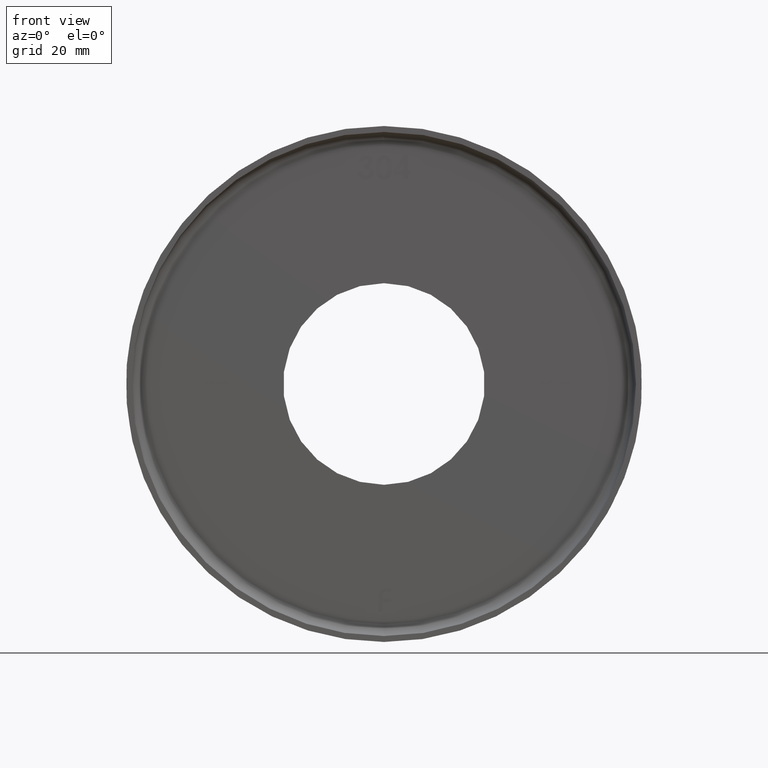
[diagram: clean part render]
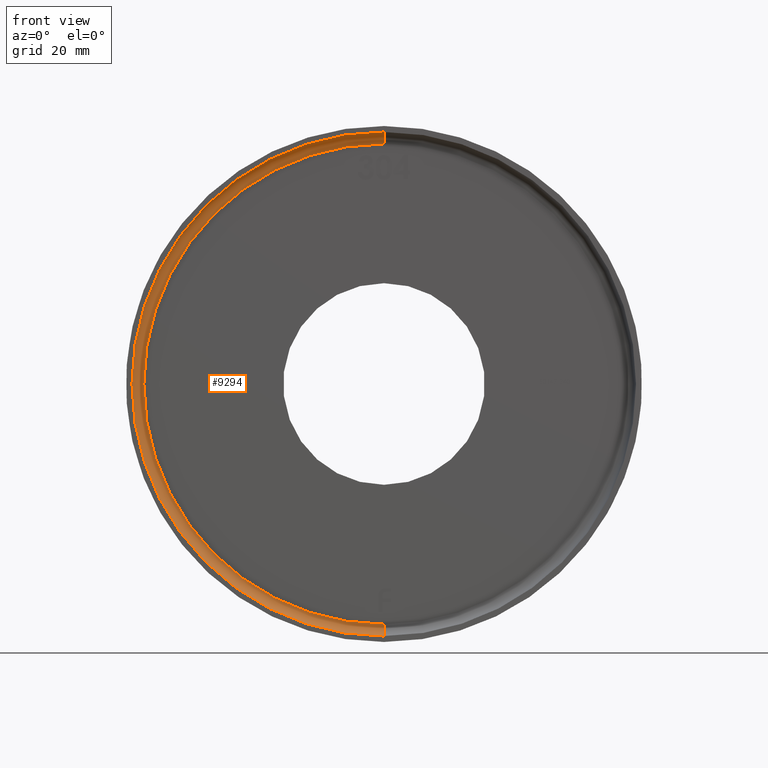
[diagram: same view with one face highlighted and labeled with its STEP entity id]
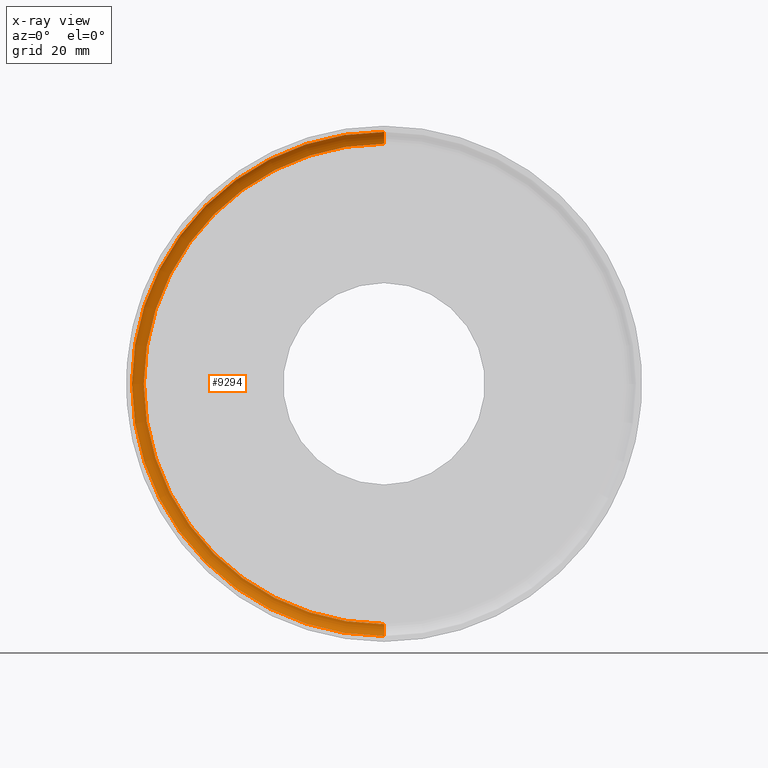
[diagram: x-ray of the same camera — body ghosted, the highlighted face saturated]
A machine part, front view. The second image highlights one B-rep face of the part: STEP entity #9294.
The next image is the same camera in x-ray: the body ghosted, the highlighted face saturated — about 0% of this face is hidden behind the body in this view.
In plain terms, the highlighted toroidal blend (fillet) surface has major radius 40.5 mm and minor (blend) radius 2 mm.
Its self-contained STEP definition (entity closure, byte-faithful):
#579 = EDGE_LOOP ( 'NONE', ( #11817, #10725, #9265, #2757 ) ) ;
#1795 = CIRCLE ( 'NONE', #9711, 2.000000000000001776 ) ;
#2186 = DIRECTION ( 'NONE',  ( -1.224646799147353454E-16, 0.000000000000000000, -1.000000000000000000 ) ) ;
#2328 = CARTESIAN_POINT ( 'NONE',  ( 4.959819536546779811E-15, 6.999999999999999112, 40.49999999999999289 ) ) ;
#2488 = DIRECTION ( 'NONE',  ( -0.000000000000000000, -1.000000000000000000, -0.000000000000000000 ) ) ;
#2757 = ORIENTED_EDGE ( 'NONE', *, *, #3624, .F. ) ;
#2804 = AXIS2_PLACEMENT_3D ( 'NONE', #6642, #14578, #12207 ) ;
#3272 = DIRECTION ( 'NONE',  ( -0.000000000000000000, -1.000000000000000000, -0.000000000000000000 ) ) ;
#3418 = CARTESIAN_POINT ( 'NONE',  ( 0.000000000000000000, 9.000000000000001776, 0.000000000000000000 ) ) ;
#3624 = EDGE_CURVE ( 'NONE', #10441, #9322, #4954, .T. ) ;
#4954 = CIRCLE ( 'NONE', #11255, 2.000000000000001776 ) ;
#5573 = CARTESIAN_POINT ( 'NONE',  ( 0.000000000000000000, 6.999999999999999112, -42.49999999999999289 ) ) ;
#6209 = VERTEX_POINT ( 'NONE', #11856 ) ;
#6519 = CARTESIAN_POINT ( 'NONE',  ( 0.000000000000000000, 6.999999999999999112, -40.49999999999999289 ) ) ;
#6642 = CARTESIAN_POINT ( 'NONE',  ( 0.000000000000000000, 6.999999999999999112, 0.000000000000000000 ) ) ;
#6999 = AXIS2_PLACEMENT_3D ( 'NONE', #3418, #2488, #12723 ) ;
#7362 = CIRCLE ( 'NONE', #10437, 42.49999999999999289 ) ;
#7814 = DIRECTION ( 'NONE',  ( 0.000000000000000000, 0.000000000000000000, -1.000000000000000000 ) ) ;
#8002 = DIRECTION ( 'NONE',  ( 1.000000000000000000, 0.000000000000000000, -1.224646799147353207E-16 ) ) ;
#8229 = CARTESIAN_POINT ( 'NONE',  ( 0.000000000000000000, 9.000000000000001776, -40.49999999999999289 ) ) ;
#8761 = EDGE_CURVE ( 'NONE', #10635, #10441, #12691, .T. ) ;
#9265 = ORIENTED_EDGE ( 'NONE', *, *, #9874, .T. ) ;
#9294 = ADVANCED_FACE ( 'NONE', ( #10388 ), #11989, .F. ) ;
#9322 = VERTEX_POINT ( 'NONE', #5573 ) ;
#9711 = AXIS2_PLACEMENT_3D ( 'NONE', #2328, #8002, #2186 ) ;
#9874 = EDGE_CURVE ( 'NONE', #6209, #9322, #7362, .T. ) ;
#9909 = DIRECTION ( 'NONE',  ( -1.000000000000000000, 0.000000000000000000, 0.000000000000000000 ) ) ;
#10388 = FACE_OUTER_BOUND ( 'NONE', #579, .T. ) ;
#10437 = AXIS2_PLACEMENT_3D ( 'NONE', #14517, #3272, #7814 ) ;
#10441 = VERTEX_POINT ( 'NONE', #8229 ) ;
#10635 = VERTEX_POINT ( 'NONE', #13841 ) ;
#10725 = ORIENTED_EDGE ( 'NONE', *, *, #13166, .T. ) ;
#11044 = DIRECTION ( 'NONE',  ( 0.000000000000000000, 0.000000000000000000, 1.000000000000000000 ) ) ;
#11255 = AXIS2_PLACEMENT_3D ( 'NONE', #6519, #9909, #11044 ) ;
#11817 = ORIENTED_EDGE ( 'NONE', *, *, #8761, .F. ) ;
#11856 = CARTESIAN_POINT ( 'NONE',  ( 5.204748896376250107E-15, 6.999999999999999112, 42.49999999999999289 ) ) ;
#11989 = TOROIDAL_SURFACE ( 'NONE', #2804, 40.49999999999999289, 2.000000000000001776 ) ;
#12207 = DIRECTION ( 'NONE',  ( 0.000000000000000000, 0.000000000000000000, -1.000000000000000000 ) ) ;
#12691 = CIRCLE ( 'NONE', #6999, 40.49999999999999289 ) ;
#12723 = DIRECTION ( 'NONE',  ( 0.000000000000000000, 0.000000000000000000, -1.000000000000000000 ) ) ;
#13166 = EDGE_CURVE ( 'NONE', #10635, #6209, #1795, .T. ) ;
#13841 = CARTESIAN_POINT ( 'NONE',  ( 5.082284216461514959E-15, 9.000000000000001776, 40.49999999999999289 ) ) ;
#14517 = CARTESIAN_POINT ( 'NONE',  ( 0.000000000000000000, 6.999999999999999112, 0.000000000000000000 ) ) ;
#14578 = DIRECTION ( 'NONE',  ( -0.000000000000000000, -1.000000000000000000, -0.000000000000000000 ) ) ;